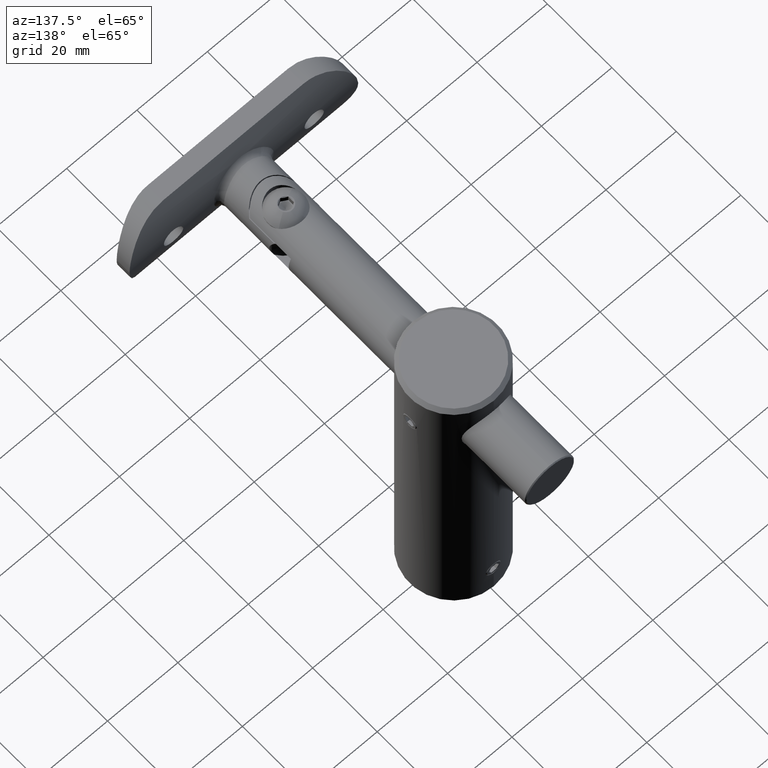
[diagram: clean part render]
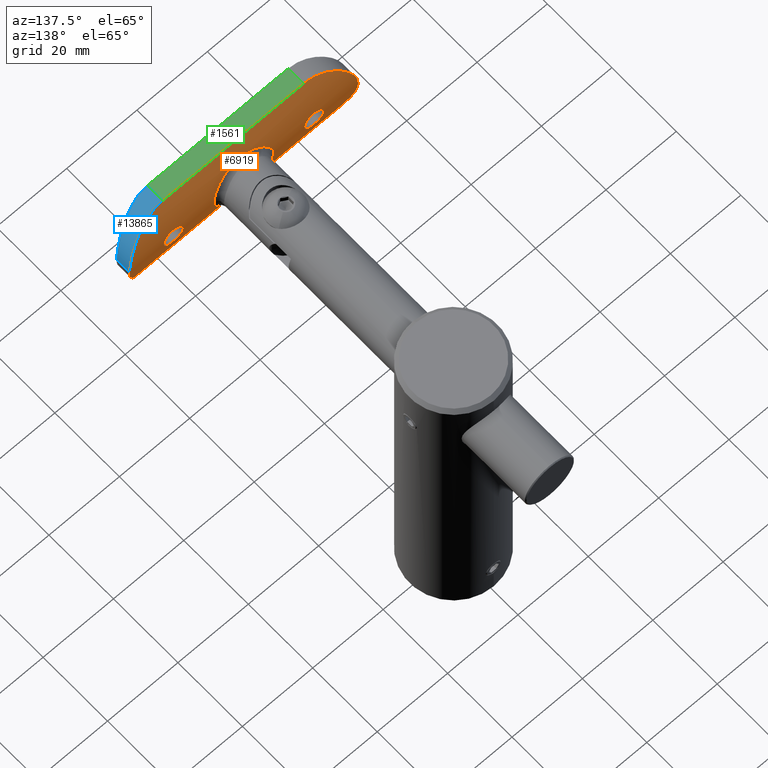
[diagram: same view with three faces highlighted in distinct colors, each labeled with its STEP entity id]
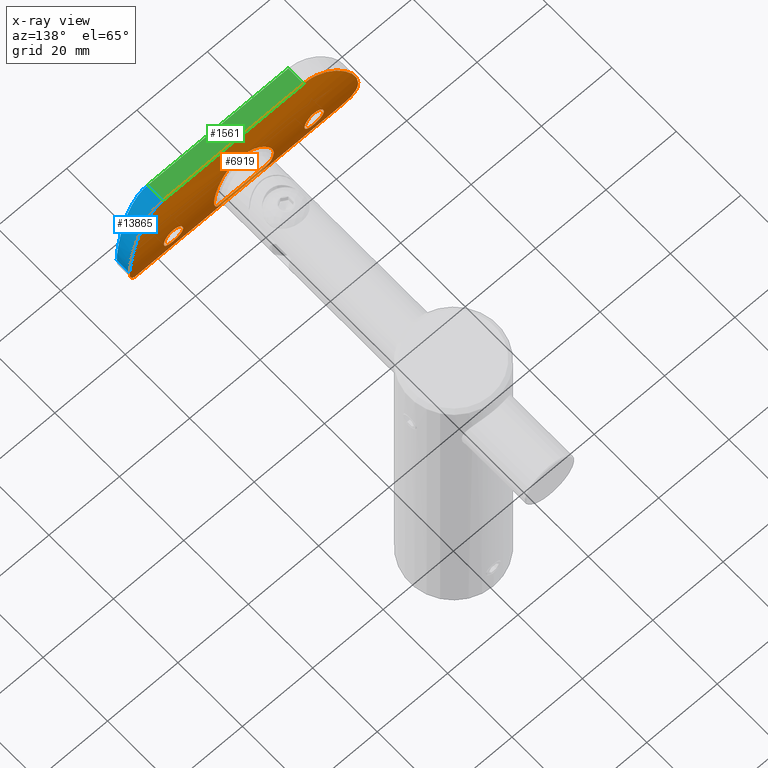
[diagram: x-ray of the same camera — body ghosted, the three highlighted faces saturated]
A machine part, auxiliary view with three faces highlighted in distinct colors.
The next image is the same camera in x-ray (body ghosted, the three faces saturated) — at least one of them is partly hidden behind the body in this view.
Their STEP definitions:

[orange] entity #6919 — the highlighted cylindrical surface (partial cylindrical patch) has radius 25.2 mm, axis along (1, -0, -0).
#29 = CARTESIAN_POINT ( 'NONE',  ( 7.219386327635718636, 1.055385166235058403, -3.746529570547258547 ) ) ;
#39 = CARTESIAN_POINT ( 'NONE',  ( 12.50000000000000355, 3.318729470161013495, -20.00000000000000355 ) ) ;
#101 = CARTESIAN_POINT ( 'NONE',  ( 7.364578021795687768, 1.099940530502117708, 3.382119123206853040 ) ) ;
#117 = VERTEX_POINT ( 'NONE', #466 ) ;
#249 = CARTESIAN_POINT ( 'NONE',  ( 5.529526221928346530, 0.6134291055515502800, -6.164569861872208456 ) ) ;
#466 = CARTESIAN_POINT ( 'NONE',  ( 0.000000000000000000, 0.000000000000000000, 17.25000000000000000 ) ) ;
#475 = CARTESIAN_POINT ( 'NONE',  ( 12.07039748615804342, 3.078414103210619146, 23.27518083691608552 ) ) ;
#559 = CYLINDRICAL_SURFACE ( 'NONE', #1268, 25.19999999999999929 ) ;
#715 = CARTESIAN_POINT ( 'NONE',  ( 1.677668902466896039, 0.05546439489903180059, 22.18632152173756467 ) ) ;
#855 = EDGE_LOOP ( 'NONE', ( #15934, #2331 ) ) ;
#926 = CARTESIAN_POINT ( 'NONE',  ( -5.426409316534606120, 0.5903371110060685600, -6.266707544016423270 ) ) ;
#974 = ORIENTED_EDGE ( 'NONE', *, *, #11627, .F. ) ;
#992 = CARTESIAN_POINT ( 'NONE',  ( -2.201255951346376083, 0.09498592681639472790, -8.178813999668568258 ) ) ;
#998 = CARTESIAN_POINT ( 'NONE',  ( 2.186845405397447983, 0.09486715601728983038, -18.32301179898312782 ) ) ;
#1027 = CARTESIAN_POINT ( 'NONE',  ( -2.731891327557903981, 0.1484927668286139535, 20.36248250880534272 ) ) ;
#1067 = CARTESIAN_POINT ( 'NONE',  ( 1.219095633492286668, 0.02895344662255283641, -17.52840215053666029 ) ) ;
#1098 = CARTESIAN_POINT ( 'NONE',  ( -0.7248454631982098606, 0.008252449000111697353, 17.32318349877056818 ) ) ;
#1136 = CARTESIAN_POINT ( 'NONE',  ( 2.608974361319663426, 0.1353235704774093939, -20.88759748460953958 ) ) ;
#1166 = CARTESIAN_POINT ( 'NONE',  ( -1.677983819124378329, 0.05547686773416762168, 22.18621664658374115 ) ) ;
#1228 = CARTESIAN_POINT ( 'NONE',  ( -7.315607594578458439, 1.082687997029814664, -30.14380031678956584 ) ) ;
#1234 = CARTESIAN_POINT ( 'NONE',  ( -2.608673552859927636, 0.1352907402618857835, 20.88869986416369073 ) ) ;
#1268 = AXIS2_PLACEMENT_3D ( 'NONE', #11400, #11618, #1749 ) ;
#1281 = ORIENTED_EDGE ( 'NONE', *, *, #12172, .T. ) ;
#1320 = CARTESIAN_POINT ( 'NONE',  ( 2.721702950764889550, 0.1425326134147779644, 8.015957193783950885 ) ) ;
#1329 = CARTESIAN_POINT ( 'NONE',  ( 0.000000000000000000, 0.000000000000000000, -22.75000000000000000 ) ) ;
#1361 = CARTESIAN_POINT ( 'NONE',  ( -12.17172894015757656, 3.134241449003878799, -22.87552147047213680 ) ) ;
#1380 = CARTESIAN_POINT ( 'NONE',  ( 12.41600094213972305, 3.270152093552303629, -21.66693629175976099 ) ) ;
#1401 = CARTESIAN_POINT ( 'NONE',  ( -0.06108275549893127376, 7.402993054683726371E-05, -8.499753613984275091 ) ) ;
#1427 = CARTESIAN_POINT ( 'NONE',  ( -11.68647699581961064, 2.872938612537728531, -24.45450101598523673 ) ) ;
#1458 = CARTESIAN_POINT ( 'NONE',  ( 2.212110397901187575, 0.09166198474247391759, 8.190629679048095468 ) ) ;
#1470 = CARTESIAN_POINT ( 'NONE',  ( -2.749863044303475501, 0.1504839716144722728, -19.81620417960690261 ) ) ;
#1475 = CARTESIAN_POINT ( 'NONE',  ( -4.069310134489409592, 0.3267805101645110399, 7.346586966710392907 ) ) ;
#1622 = CARTESIAN_POINT ( 'NONE',  ( -6.549007653830282827, 0.8654109688374730380, 4.917023675230043800 ) ) ;
#1661 = CARTESIAN_POINT ( 'NONE',  ( -12.50000000000000178, 3.318729470161014383, 20.84105733039345765 ) ) ;
#1675 = CARTESIAN_POINT ( 'NONE',  ( 5.337112230350437692, 0.5707867674719869777, -6.352280609391856459 ) ) ;
#1691 = CARTESIAN_POINT ( 'NONE',  ( -2.096404911681920336, 0.08166995862605212764, 8.224845379953734437 ) ) ;
#1726 = CARTESIAN_POINT ( 'NONE',  ( -10.83018612312571882, 2.440555194631701674, 26.29386951518686999 ) ) ;
#1741 = CARTESIAN_POINT ( 'NONE',  ( 2.858471660253331326, 0.1614077930145038364, -7.947203351163224738 ) ) ;
#1749 = DIRECTION ( 'NONE',  ( -1.000000000000000000, 0.000000000000000000, 0.000000000000000000 ) ) ;
#1760 = CARTESIAN_POINT ( 'NONE',  ( -8.025752413704363875, 1.312193245451310331, -0.4858620084487325075 ) ) ;
#1896 = CARTESIAN_POINT ( 'NONE',  ( 7.979500815149819459, 1.296497576001208296, 1.032576614637431778 ) ) ;
#1937 = EDGE_CURVE ( 'NONE', #19012, #13345, #17522, .T. ) ;
#2012 = CARTESIAN_POINT ( 'NONE',  ( 0.7123072138261845598, 0.009455089816862395288, 17.33780877909764229 ) ) ;
#2125 = CARTESIAN_POINT ( 'NONE',  ( 9.128318860952353120, 1.709465851586690732, 28.54893592778294575 ) ) ;
#2197 = B_SPLINE_CURVE_WITH_KNOTS ( 'NONE', 3,
 ( #1401, #2499, #20513, #10726, #992, #12491, #17441, #7907, #19005, #14123, #12824, #926, #12355, #13982, #4967, #21136, #6555, #16408, #13030, #3409, #14812, #4899, #1760, #17856, #13103, #21070, #11480, #9769, #16336, #3122, #12967, #1622, #3258, #11274, #19570, #17984, #19421, #1475, #9912, #19625, #1691, #8272, #3334, #16127, #6621, #14674 ),
 .UNSPECIFIED., .F., .F.,
 ( 4, 2, 2, 2, 2, 2, 2, 2, 2, 2, 2, 2, 2, 2, 2, 2, 2, 2, 2, 2, 2, 2, 4 ),
 ( 6.108329727381766109E-05, 0.001711083506257863934, 0.002536083610749886603, 0.003361083715241909055, 0.005011083924225954826, 0.005836084028717977712, 0.006661084133210000598, 0.008311084342194048971, 0.009961084551178094743, 0.01078608465567011850, 0.01161108476016214225, 0.01326108496914619149, 0.01491108517813023553, 0.01656108538711428130, 0.01738608549160630332, 0.01821108559609833227, 0.01903608570059035429, 0.01986108580508238325, 0.02151108601406643422, 0.02316108622305048520, 0.02481108643203453964, 0.02563608653652656513, 0.02646108664101859062 ),
 .UNSPECIFIED. ) ;
#2216 = VERTEX_POINT ( 'NONE', #18242 ) ;
#2331 = ORIENTED_EDGE ( 'NONE', *, *, #12564, .F. ) ;
#2499 = CARTESIAN_POINT ( 'NONE',  ( -0.6110681906168824451, 0.001407153920719840827, -8.495316660117891772 ) ) ;
#2680 = CARTESIAN_POINT ( 'NONE',  ( -2.749863044303475501, 0.1504839716144722728, 20.18379582039309739 ) ) ;
#2720 = EDGE_CURVE ( 'NONE', #2216, #20405, #19235, .T. ) ;
#2807 = CARTESIAN_POINT ( 'NONE',  ( -2.609961094115734959, 0.1354253680277159866, 19.11507552572169999 ) ) ;
#2946 = CARTESIAN_POINT ( 'NONE',  ( -9.128318860952344238, 1.709465851586691398, -28.54893592778294575 ) ) ;
#2999 = ORIENTED_EDGE ( 'NONE', *, *, #9517, .T. ) ;
#3076 = CARTESIAN_POINT ( 'NONE',  ( -4.468211620779531934, 0.3963447934949461127, -31.68121519372563100 ) ) ;
#3122 = CARTESIAN_POINT ( 'NONE',  ( -6.964696288678641878, 0.9812289249431125349, 4.227420665601886896 ) ) ;
#3188 = CARTESIAN_POINT ( 'NONE',  ( -1.217448732056683136, 0.02888063956006700975, -17.52767396449248238 ) ) ;
#3229 = CARTESIAN_POINT ( 'NONE',  ( 0.000000000000000000, 0.000000000000000000, 32.50000000000000000 ) ) ;
#3244 = CARTESIAN_POINT ( 'NONE',  ( 4.931500988828241283, 0.4863760364879862186, -6.710225937913270933 ) ) ;
#3258 = CARTESIAN_POINT ( 'NONE',  ( -6.396290159362874483, 0.8246844479477537515, 5.137882799507451637 ) ) ;
#3296 = CARTESIAN_POINT ( 'NONE',  ( -3.277855041561018368, 0.2108776143917484303, 32.06970119788351781 ) ) ;
#3312 = CARTESIAN_POINT ( 'NONE',  ( 1.029335845911686143, 0.01545738240591788999, -8.449071739571833106 ) ) ;
#3334 = CARTESIAN_POINT ( 'NONE',  ( -1.023846999475756192, 0.01934687596871893442, 8.435428898004911247 ) ) ;
#3352 = FACE_BOUND ( 'NONE', #855, .T. ) ;
#3391 = CARTESIAN_POINT ( 'NONE',  ( -0.06108275549893127376, 7.402993054683726371E-05, -8.499753613984275091 ) ) ;
#3409 = CARTESIAN_POINT ( 'NONE',  ( -7.778756138078517957, 1.230506860669539959, -2.097069732046016100 ) ) ;
#3452 = CARTESIAN_POINT ( 'NONE',  ( -12.49999999999999645, 3.318729470161013495, 20.00000000000000000 ) ) ;
#3527 = CARTESIAN_POINT ( 'NONE',  ( 6.403089845704128535, 0.8252358511368963478, -5.150547054720000517 ) ) ;
#3640 = CARTESIAN_POINT ( 'NONE',  ( 2.386475810722792801, 0.1130527907451534392, 18.62162094614700081 ) ) ;
#3654 = LINE ( 'NONE', #19810, #20555 ) ;
#3683 = CARTESIAN_POINT ( 'NONE',  ( 12.41604513394916331, 3.270190002513736260, 21.66440971848879826 ) ) ;
#3691 = VERTEX_POINT ( 'NONE', #17725 ) ;
#3932 = CARTESIAN_POINT ( 'NONE',  ( 2.071661256399241147, 0.08497705952024417475, -21.81737590011710637 ) ) ;
#4053 = VERTEX_POINT ( 'NONE', #8789 ) ;
#4283 = CARTESIAN_POINT ( 'NONE',  ( 2.732461809628500049, 0.1485546420409056823, -20.35905496703956175 ) ) ;
#4313 = CARTESIAN_POINT ( 'NONE',  ( -2.661730875569997323, 0.1409410865998053930, 20.71401158310862911 ) ) ;
#4329 = CARTESIAN_POINT ( 'NONE',  ( 7.643915563752456954, 1.185045859685578851, -29.89864509263436787 ) ) ;
#4389 = CARTESIAN_POINT ( 'NONE',  ( -2.070049739579363557, 0.08484369530548850624, 21.81920921176698158 ) ) ;
#4454 = CARTESIAN_POINT ( 'NONE',  ( -0.3580001740282881539, 0.001917836237160809674, 22.73259430812108306 ) ) ;
#4518 = CARTESIAN_POINT ( 'NONE',  ( -12.49999999999999822, 3.318729470161014383, -20.84092147420122032 ) ) ;
#4550 = EDGE_LOOP ( 'NONE', ( #17986, #1281, #15323, #2999, #11323, #12786 ) ) ;
#4585 = CARTESIAN_POINT ( 'NONE',  ( -2.387772925441571825, 0.1131797228511405573, 18.62402471359489908 ) ) ;
#4597 = CARTESIAN_POINT ( 'NONE',  ( 3.277855041561019256, 0.2108776143917484025, -32.06970119788353202 ) ) ;
#4599 = DIRECTION ( 'NONE',  ( 0.000000000000000000, 0.000000000000000000, -1.000000000000000000 ) ) ;
#4719 = CARTESIAN_POINT ( 'NONE',  ( 0.000000000000000000, 0.000000000000000000, -32.50000000000000000 ) ) ;
#4801 = CARTESIAN_POINT ( 'NONE',  ( -4.070717388981838880, 0.3277296730789911461, 31.82587335543209761 ) ) ;
#4824 = CARTESIAN_POINT ( 'NONE',  ( -2.470413666786928530, 0.1212862312369624579, -18.77851669315223404 ) ) ;
#4867 = CARTESIAN_POINT ( 'NONE',  ( -11.68341459577139929, 2.871341540761538358, 24.46233648995672638 ) ) ;
#4899 = CARTESIAN_POINT ( 'NONE',  ( -7.980480439930787817, 1.296824004734356661, -1.025345728784334387 ) ) ;
#4967 = CARTESIAN_POINT ( 'NONE',  ( -6.475385558901228578, 0.8444232337257844279, -5.048033015876951524 ) ) ;
#5018 = CARTESIAN_POINT ( 'NONE',  ( 6.977323454022847926, 0.9833601772912337058, -4.231161586339579728 ) ) ;
#5060 = VERTEX_POINT ( 'NONE', #18862 ) ;
#5161 = CARTESIAN_POINT ( 'NONE',  ( 2.084272546754580180, 0.08499509583040139316, -8.213134328736778400 ) ) ;
#5210 = CARTESIAN_POINT ( 'NONE',  ( 0.1818445906004800550, -2.382280164152719704E-19, 17.25000000000000355 ) ) ;
#5323 = CARTESIAN_POINT ( 'NONE',  ( 3.291592242805514879, 0.2126942720887864124, 32.06594161125493514 ) ) ;
#5395 = CARTESIAN_POINT ( 'NONE',  ( 4.468211620779538151, 0.3963447934949464457, 31.68121519372564521 ) ) ;
#5425 = CARTESIAN_POINT ( 'NONE',  ( 0.3606231533980620574, 0.001966636658811664849, -22.73214102944040249 ) ) ;
#5427 = CARTESIAN_POINT ( 'NONE',  ( 0.8870457649144875001, 0.01506562019405573161, 17.39075877949505156 ) ) ;
#5501 = CARTESIAN_POINT ( 'NONE',  ( 1.676804932486638755, 0.05540344988688259559, -22.18703308796564855 ) ) ;
#5502 = CARTESIAN_POINT ( 'NONE',  ( 1.377952979709324399, 0.03725658765956019886, 17.61336343462641096 ) ) ;
#5643 = CARTESIAN_POINT ( 'NONE',  ( 1.220040459320808290, 0.02899940046473993907, -22.47113156538763690 ) ) ;
#5644 = CARTESIAN_POINT ( 'NONE',  ( 1.219095633492286668, 0.02895344662255283641, 22.47159784946334327 ) ) ;
#5819 = EDGE_CURVE ( 'NONE', #117, #3691, #13046, .T. ) ;
#5920 = CARTESIAN_POINT ( 'NONE',  ( 1.379931598055809783, 0.03736833065384769642, -17.61455171353381743 ) ) ;
#5952 = CARTESIAN_POINT ( 'NONE',  ( -0.1795031878923732671, -1.317162702760038330E-15, 22.75000000000000000 ) ) ;
#5969 = CARTESIAN_POINT ( 'NONE',  ( 4.070717388981838880, 0.3277296730789912571, -31.82587335543210472 ) ) ;
#6065 = CARTESIAN_POINT ( 'NONE',  ( 2.750065284371435048, 0.1505061740554802518, -19.82148950650028851 ) ) ;
#6151 = CARTESIAN_POINT ( 'NONE',  ( -12.49999999999999645, 3.318729470161013495, 20.00000000000000000 ) ) ;
#6159 = CARTESIAN_POINT ( 'NONE',  ( -9.908890582928830071, 2.028239840774360481, -27.63058222437334166 ) ) ;
#6175 = CARTESIAN_POINT ( 'NONE',  ( 8.266035766619461711, 1.392015620549697186, -29.38537545976075194 ) ) ;
#6192 = CARTESIAN_POINT ( 'NONE',  ( -2.732406010615071601, 0.1485492483776507389, -20.35858776644249346 ) ) ;
#6223 = CARTESIAN_POINT ( 'NONE',  ( -10.83002449294435898, 2.440458914311941729, -26.29431497601598622 ) ) ;
#6231 = CARTESIAN_POINT ( 'NONE',  ( -1.681001452974610233, 0.05567932825155114118, 17.81610398777750959 ) ) ;
#6244 = CARTESIAN_POINT ( 'NONE',  ( 10.83018612312571882, 2.440555194631701230, -26.29386951518686644 ) ) ;
#6255 = CARTESIAN_POINT ( 'NONE',  ( 5.034052585110987188, 0.5040469696071594452, 6.641681414604299505 ) ) ;
#6296 = CARTESIAN_POINT ( 'NONE',  ( -12.07039748615804520, 3.078414103210619146, -23.27518083691609263 ) ) ;
#6333 = CARTESIAN_POINT ( 'NONE',  ( -0.3580001740282881539, 0.001917836237160809674, -17.26740569187890983 ) ) ;
#6446 = CARTESIAN_POINT ( 'NONE',  ( -4.460191993434859725, 0.3948698794312859861, 31.68435314470299957 ) ) ;
#6474 = CARTESIAN_POINT ( 'NONE',  ( -2.472126326106448335, 0.1214555880474237487, -21.21802285107709807 ) ) ;
#6490 = VERTEX_POINT ( 'NONE', #8603 ) ;
#6537 = CARTESIAN_POINT ( 'NONE',  ( 7.257040857804980760, 1.067233475373370544, 3.633718849123316552 ) ) ;
#6555 = CARTESIAN_POINT ( 'NONE',  ( -7.269647212595326202, 1.070531933630990640, -3.635648357687877752 ) ) ;
#6588 = CARTESIAN_POINT ( 'NONE',  ( -7.316861939614358157, 1.083062932609342166, 30.14291416132807910 ) ) ;
#6603 = CARTESIAN_POINT ( 'NONE',  ( 3.599532272273171074, 0.2534329579878119021, -7.617564970011440728 ) ) ;
#6621 = CARTESIAN_POINT ( 'NONE',  ( -0.2105459697796843166, -0.0005793382571954952499, 8.501928177923188557 ) ) ;
#6660 = CARTESIAN_POINT ( 'NONE',  ( -12.16969663537520674, 3.133117325917486706, 22.88442763853375794 ) ) ;
#6672 = EDGE_CURVE ( 'NONE', #13345, #16647, #14045, .T. ) ;
#6677 = CARTESIAN_POINT ( 'NONE',  ( 8.018510805691830612, 1.309761405890365715, -0.6056675762212204717 ) ) ;
#6861 = CARTESIAN_POINT ( 'NONE',  ( 0.3606231533980620574, 0.001966636658811664849, 17.26785897055959751 ) ) ;
#6919 = ADVANCED_FACE ( 'NONE', ( #9266, #11044, #16390, #3352 ), #559, .T. ) ;
#6935 = CARTESIAN_POINT ( 'NONE',  ( 2.185445985078766196, 0.09474132932688443531, 18.32100581967393182 ) ) ;
#7078 = CARTESIAN_POINT ( 'NONE',  ( 0.7123072138261845598, 0.009455089816862395288, -22.66219122090236127 ) ) ;
#7117 = CARTESIAN_POINT ( 'NONE',  ( 10.15187181039420672, 2.133985303426429780, 27.30437927746718074 ) ) ;
#7189 = CARTESIAN_POINT ( 'NONE',  ( 12.50000000000000355, 3.318729470161013495, 20.84092147420121677 ) ) ;
#7222 = CARTESIAN_POINT ( 'NONE',  ( 0.3619265619250442434, 0.001981854215824128441, 22.73200348333876519 ) ) ;
#7262 = CARTESIAN_POINT ( 'NONE',  ( 9.397641427769128697, 1.816225346274615182, 28.25204418689426689 ) ) ;
#7357 = B_SPLINE_CURVE_WITH_KNOTS ( 'NONE', 3,
 ( #11470, #7189, #3683, #10416, #475, #18404, #8843, #16921, #8768, #7117, #15102, #7262, #2125, #20130, #13662, #15168, #18692, #8628, #11909, #5395, #20271, #5323, #20058, #16849, #20195, #16770 ),
 .UNSPECIFIED., .F., .F.,
 ( 4, 2, 2, 2, 2, 2, 2, 2, 2, 2, 2, 2, 4 ),
 ( 0.000000000000000000, 0.002482949619020690529, 0.003724424428531040131, 0.004965899238041389732, 0.007448848857062097609, 0.008690323666572448078, 0.009931798476082796812, 0.01117327328559314728, 0.01241474809510349428, 0.01489769771412418828, 0.01613917252363453528, 0.01738064733314488228, 0.01986359695216557281 ),
 .UNSPECIFIED. ) ;
#7436 = CARTESIAN_POINT ( 'NONE',  ( 0.1795455977072645815, -1.311983449217973235E-15, -17.25000000000000355 ) ) ;
#7437 = CARTESIAN_POINT ( 'NONE',  ( 1.379931598055809783, 0.03736833065384769642, 22.38544828646618257 ) ) ;
#7577 = CARTESIAN_POINT ( 'NONE',  ( 2.749934349876255180, 0.1504917997237276150, -20.18051630387616768 ) ) ;
#7617 = CARTESIAN_POINT ( 'NONE',  ( 10.15326211524584643, 2.134602035805861941, -27.30241053714794930 ) ) ;
#7637 = CARTESIAN_POINT ( 'NONE',  ( 2.471811025445441512, 0.1214254394478188476, -21.21849364676016947 ) ) ;
#7678 = CARTESIAN_POINT ( 'NONE',  ( 6.305381315458570057, 0.7915044484486738474, -30.82371801999915917 ) ) ;
#7701 = CARTESIAN_POINT ( 'NONE',  ( 1.677668902466896039, 0.05546439489903180059, -17.81367847826244244 ) ) ;
#7807 = CARTESIAN_POINT ( 'NONE',  ( -2.662740999674293896, 0.1410487502677224281, 19.28976189785317175 ) ) ;
#7820 = CARTESIAN_POINT ( 'NONE',  ( 2.877492456091673922, 0.1615283928029649652, -32.17128298990891722 ) ) ;
#7839 = CARTESIAN_POINT ( 'NONE',  ( -2.186191567257209645, 0.09480897740505452032, -18.32210674297805042 ) ) ;
#7864 = CARTESIAN_POINT ( 'NONE',  ( -9.397641427769128697, 1.816225346274616292, -28.25204418689426333 ) ) ;
#7883 = CARTESIAN_POINT ( 'NONE',  ( 11.82318603278413960, 2.945306615177193610, -24.07833795785315445 ) ) ;
#7891 = CARTESIAN_POINT ( 'NONE',  ( 6.157552135518212566, 0.7610150547235419172, 5.476895163592731208 ) ) ;
#7907 = CARTESIAN_POINT ( 'NONE',  ( -3.706125848579806537, 0.2691211238552234652, -7.559892060029604899 ) ) ;
#7936 = CARTESIAN_POINT ( 'NONE',  ( -7.642973678624868761, 1.184744735341880739, -29.89937630247455047 ) ) ;
#7976 = CARTESIAN_POINT ( 'NONE',  ( -2.070049739579363113, 0.08484369530548910299, -18.18079078823301842 ) ) ;
#8044 = CARTESIAN_POINT ( 'NONE',  ( 3.698755685074010646, 0.2718078074227756047, 7.547990148752564465 ) ) ;
#8097 = CARTESIAN_POINT ( 'NONE',  ( -7.643915563752456066, 1.185045859685579073, 29.89864509263435366 ) ) ;
#8165 = CARTESIAN_POINT ( 'NONE',  ( -0.8406273536774243604, 0.000000000000000000, 32.49999999999999289 ) ) ;
#8197 = VERTEX_POINT ( 'NONE', #39 ) ;
#8272 = CARTESIAN_POINT ( 'NONE',  ( -1.296580820323811167, 0.03196009655009600381, 8.393195513344283043 ) ) ;
#8313 = CARTESIAN_POINT ( 'NONE',  ( -1.664684350995173645, 0.04192139592814474874, 32.41608617209117682 ) ) ;
#8432 = CARTESIAN_POINT ( 'NONE',  ( 2.071661256399241147, 0.08497705952024417475, 18.18262409988289008 ) ) ;
#8445 = DIRECTION ( 'NONE',  ( 0.000000000000000000, 0.000000000000000000, -1.000000000000000000 ) ) ;
#8603 = CARTESIAN_POINT ( 'NONE',  ( 0.000000000000000000, 0.000000000000000000, 32.50000000000000000 ) ) ;
#8628 = CARTESIAN_POINT ( 'NONE',  ( 6.305223603466182603, 0.7914857843385423308, 30.82374023567219368 ) ) ;
#8662 = CARTESIAN_POINT ( 'NONE',  ( 0.000000000000000000, 0.000000000000000000, 17.25000000000000000 ) ) ;
#8730 = CARTESIAN_POINT ( 'NONE',  ( 1.818193974664967349, 0.06535601341085055249, 17.92905668979468814 ) ) ;
#8768 = CARTESIAN_POINT ( 'NONE',  ( 10.83002449294436254, 2.440458914311941729, 26.29431497601598267 ) ) ;
#8789 = CARTESIAN_POINT ( 'NONE',  ( 0.000000000000000000, 0.000000000000000000, -22.75000000000000000 ) ) ;
#8843 = CARTESIAN_POINT ( 'NONE',  ( 11.68647699581961064, 2.872938612537728975, 24.45450101598523318 ) ) ;
#9095 = CARTESIAN_POINT ( 'NONE',  ( 2.186845405397447983, 0.09486715601728983038, 21.67698820101687929 ) ) ;
#9266 = FACE_BOUND ( 'NONE', #12699, .T. ) ;
#9297 = CARTESIAN_POINT ( 'NONE',  ( 0.3619265619250442434, 0.001981854215824128441, -17.26799651666123836 ) ) ;
#9367 = CARTESIAN_POINT ( 'NONE',  ( 0.8860473344149224495, 0.01503029826974693756, -17.39041953290418974 ) ) ;
#9398 = CARTESIAN_POINT ( 'NONE',  ( -1.380705439593752137, 0.03740314638222120430, 17.61487523047949111 ) ) ;
#9470 = CARTESIAN_POINT ( 'NONE',  ( 9.129107160068516080, 1.709771713892833001, -28.54809784016517327 ) ) ;
#9491 = CARTESIAN_POINT ( 'NONE',  ( -0.1795031878923732671, -1.317162702760038330E-15, -17.25000000000000355 ) ) ;
#9517 = EDGE_CURVE ( 'NONE', #12153, #6490, #7357, .T. ) ;
#9561 = CARTESIAN_POINT ( 'NONE',  ( -2.608673552859927636, 0.1352907402618860333, -19.11130013583631282 ) ) ;
#9594 = CARTESIAN_POINT ( 'NONE',  ( -0.8408319059978933696, 2.428161115462323427E-17, -32.50000000000000000 ) ) ;
#9631 = CARTESIAN_POINT ( 'NONE',  ( -1.220874907014684041, 0.02904747797317014379, -22.47063278192352698 ) ) ;
#9741 = CARTESIAN_POINT ( 'NONE',  ( -11.82318603278414315, 2.945306615177194054, 24.07833795785315445 ) ) ;
#9765 = CARTESIAN_POINT ( 'NONE',  ( -1.819241778286837530, 0.06543225118884783698, -22.07002044224181958 ) ) ;
#9769 = CARTESIAN_POINT ( 'NONE',  ( -7.317168829571954802, 1.085487654854809803, 3.495793623221178148 ) ) ;
#9807 = CARTESIAN_POINT ( 'NONE',  ( -11.21245238722107018, 2.629098992545241487, 25.58474759764793660 ) ) ;
#9826 = CARTESIAN_POINT ( 'NONE',  ( 7.813422821510338956, 1.241842921743142147, -1.946974063800769761 ) ) ;
#9912 = CARTESIAN_POINT ( 'NONE',  ( -3.593177948507834341, 0.2525513425753247443, 7.620775319185632668 ) ) ;
#10049 = CARTESIAN_POINT ( 'NONE',  ( 7.021641523310250932, 0.9976940672564051926, 4.120334444547545161 ) ) ;
#10236 = CARTESIAN_POINT ( 'NONE',  ( 2.661862787343812098, 0.1409550103587203784, 20.71368127239569290 ) ) ;
#10379 = CARTESIAN_POINT ( 'NONE',  ( 0.8870457649144875001, 0.01506562019405573161, -22.60924122050495200 ) ) ;
#10380 = CARTESIAN_POINT ( 'NONE',  ( 2.661818859993606790, 0.1409500894293511108, 19.28586530190980852 ) ) ;
#10416 = CARTESIAN_POINT ( 'NONE',  ( 12.17172894015757301, 3.134241449003879243, 22.87552147047213325 ) ) ;
#10596 = CARTESIAN_POINT ( 'NONE',  ( 0.8860473344149224495, 0.01503029826974693756, 22.60958046709580316 ) ) ;
#10677 = EDGE_CURVE ( 'NONE', #6490, #19012, #15982, .T. ) ;
#10679 = ORIENTED_EDGE ( 'NONE', *, *, #2720, .T. ) ;
#10726 = CARTESIAN_POINT ( 'NONE',  ( -1.940354578360550475, 0.07342339228314843924, -8.252580130412868087 ) ) ;
#10729 = CARTESIAN_POINT ( 'NONE',  ( 2.471992188797772716, 0.1214422965093789331, 21.21829803538180670 ) ) ;
#10833 = CARTESIAN_POINT ( 'NONE',  ( -0.8864897003658910313, 0.01505276392571752719, 22.60935115539859197 ) ) ;
#10876 = CARTESIAN_POINT ( 'NONE',  ( 1.816470635807415190, 0.06522320398721241641, -17.92734796741710923 ) ) ;
#10906 = CARTESIAN_POINT ( 'NONE',  ( -1.819241778286838196, 0.06543225118884780922, 17.92997955775818397 ) ) ;
#10920 = CARTESIAN_POINT ( 'NONE',  ( 11.68341459577140107, 2.871341540761539246, -24.46233648995674059 ) ) ;
#10945 = CARTESIAN_POINT ( 'NONE',  ( 2.661818859993606790, 0.1409500894293511108, -20.71413469809019148 ) ) ;
#11044 = FACE_OUTER_BOUND ( 'NONE', #4550, .T. ) ;
#11052 = CARTESIAN_POINT ( 'NONE',  ( 0.8406273536774238053, -0.000000000000000000, -32.49999999999999289 ) ) ;
#11113 = CARTESIAN_POINT ( 'NONE',  ( -1.217448732056683580, 0.02888063956006701322, 22.47232603550751762 ) ) ;
#11126 = CARTESIAN_POINT ( 'NONE',  ( 7.316861939614359933, 1.083062932609342388, -30.14291416132809687 ) ) ;
#11182 = CARTESIAN_POINT ( 'NONE',  ( 8.562866471435933491, 1.497495063479012956, -29.11525600394245572 ) ) ;
#11274 = CARTESIAN_POINT ( 'NONE',  ( -6.068934015391644898, 0.7411248013792612888, 5.565846480655862294 ) ) ;
#11296 = CARTESIAN_POINT ( 'NONE',  ( -10.15187181039420139, 2.133985303426428448, -27.30437927746718074 ) ) ;
#11323 = ORIENTED_EDGE ( 'NONE', *, *, #10677, .T. ) ;
#11340 = CARTESIAN_POINT ( 'NONE',  ( -2.188487952104988921, 0.09500982583482231458, -21.67489940466904486 ) ) ;
#11396 = CARTESIAN_POINT ( 'NONE',  ( 6.893386344518961373, 0.9607351080256109066, 4.356614900635508825 ) ) ;
#11400 = CARTESIAN_POINT ( 'NONE',  ( 0.000000000000000000, 25.19999999999999929, 32.50000000000000000 ) ) ;
#11446 = CARTESIAN_POINT ( 'NONE',  ( -6.305381315458568281, 0.7915044484486738474, 30.82371801999915917 ) ) ;
#11462 = CARTESIAN_POINT ( 'NONE',  ( 4.719140503290183197, 0.4448193468405350903, -6.879513116131951378 ) ) ;
#11470 = CARTESIAN_POINT ( 'NONE',  ( 12.50000000000000355, 3.318729470161013495, 20.00000000000000000 ) ) ;
#11480 = CARTESIAN_POINT ( 'NONE',  ( -7.613268930484754726, 1.176661399992941170, 2.735539625944348519 ) ) ;
#11521 = CARTESIAN_POINT ( 'NONE',  ( -8.266035766619465264, 1.392015620549698296, 29.38537545976074483 ) ) ;
#11538 = CARTESIAN_POINT ( 'NONE',  ( 6.077169719930138214, 0.7408805853093767269, -5.576197931323938484 ) ) ;
#11590 = CARTESIAN_POINT ( 'NONE',  ( -9.398516132625637454, 1.816575251650669465, 28.25106046154296280 ) ) ;
#11609 = CARTESIAN_POINT ( 'NONE',  ( 7.966027505263570951, 1.291970535364157957, -1.144846414395188861 ) ) ;
#11618 = DIRECTION ( 'NONE',  ( 0.000000000000000000, 0.000000000000000000, -1.000000000000000000 ) ) ;
#11627 = EDGE_CURVE ( 'NONE', #5060, #4053, #19559, .T. ) ;
#11903 = CARTESIAN_POINT ( 'NONE',  ( -0.06108275549893127376, 7.402993054683726371E-05, -8.499753613984275091 ) ) ;
#11909 = CARTESIAN_POINT ( 'NONE',  ( 5.594010815491769151, 0.6168360506386498798, 31.20802645236641837 ) ) ;
#12010 = CARTESIAN_POINT ( 'NONE',  ( 2.732461809628500049, 0.1485546420409056823, 19.64094503296044536 ) ) ;
#12153 = VERTEX_POINT ( 'NONE', #16033 ) ;
#12156 = CARTESIAN_POINT ( 'NONE',  ( 2.073153042044685535, 0.08509194481504149532, 21.81589880862932773 ) ) ;
#12172 = EDGE_CURVE ( 'NONE', #16647, #8197, #13093, .T. ) ;
#12290 = CARTESIAN_POINT ( 'NONE',  ( 2.609876908287981578, 0.1354165326377078371, 20.88517682305715084 ) ) ;
#12355 = CARTESIAN_POINT ( 'NONE',  ( -5.615458157688395069, 0.6329364436400787275, -6.076716287299063879 ) ) ;
#12361 = CARTESIAN_POINT ( 'NONE',  ( 0.1795455977072645815, -1.311983449217973235E-15, 22.75000000000000000 ) ) ;
#12465 = CARTESIAN_POINT ( 'NONE',  ( -2.186191567257209201, 0.09480897740505701832, 21.67789325702194958 ) ) ;
#12491 = CARTESIAN_POINT ( 'NONE',  ( -2.717468170008853434, 0.1456066502684315311, -8.002663445529751840 ) ) ;
#12564 = EDGE_CURVE ( 'NONE', #3691, #117, #18189, .T. ) ;
#12589 = CARTESIAN_POINT ( 'NONE',  ( -2.470413666786928530, 0.1212862312369622497, 21.22148330684776951 ) ) ;
#12605 = CARTESIAN_POINT ( 'NONE',  ( 12.50000000000000355, 3.318729470161013495, -20.00000000000000355 ) ) ;
#12652 = CARTESIAN_POINT ( 'NONE',  ( -12.49999999999999645, 3.318729470161013495, -20.00000000000000355 ) ) ;
#12670 = CARTESIAN_POINT ( 'NONE',  ( 1.664684350995175421, 0.04192139592814493609, -32.41608617209116971 ) ) ;
#12672 = CARTESIAN_POINT ( 'NONE',  ( -12.49999999999999645, 3.318729470161013495, 32.50000000000002132 ) ) ;
#12699 = EDGE_LOOP ( 'NONE', ( #17177, #10679 ) ) ;
#12722 = CARTESIAN_POINT ( 'NONE',  ( -1.816389252517511821, 0.06522504145087958116, 22.07252458703131381 ) ) ;
#12733 = CARTESIAN_POINT ( 'NONE',  ( 9.910013130227612876, 2.028718244006083804, -27.62913782769574667 ) ) ;
#12739 = CARTESIAN_POINT ( 'NONE',  ( 4.164404684986927840, 0.3453567068928883321, 7.270613454407812704 ) ) ;
#12786 = ORIENTED_EDGE ( 'NONE', *, *, #1937, .T. ) ;
#12824 = CARTESIAN_POINT ( 'NONE',  ( -5.028197777310791317, 0.5058984230495738865, -6.629112423204833959 ) ) ;
#12849 = CARTESIAN_POINT ( 'NONE',  ( -6.305223603466179938, 0.7914857843385423308, -30.82374023567219368 ) ) ;
#12900 = CARTESIAN_POINT ( 'NONE',  ( -2.385862764267737024, 0.1129972152947476410, -18.62071822284677225 ) ) ;
#12967 = CARTESIAN_POINT ( 'NONE',  ( -6.833211539546232061, 0.9436823771349134304, 4.461792971427138710 ) ) ;
#13023 = CARTESIAN_POINT ( 'NONE',  ( 3.367778438409112056E-16, 1.187979961890814428E-17, -17.25000000000000000 ) ) ;
#13030 = CARTESIAN_POINT ( 'NONE',  ( -7.635646868906145635, 1.184535288579818602, -2.621845462551171124 ) ) ;
#13046 = B_SPLINE_CURVE_WITH_KNOTS ( 'NONE', 3,
 ( #8662, #5210, #6861, #2012, #5427, #13414, #5502, #14987, #8730, #8432, #6935, #3640, #20159, #19870, #10380, #12010, #13342, #15059, #18295, #10236, #12290, #10729, #18873, #9095, #12156, #13701, #715, #7437, #5644, #10596, #15506, #7222, #12361, #15421 ),
 .UNSPECIFIED., .F., .F.,
 ( 4, 2, 2, 2, 2, 2, 2, 2, 2, 2, 2, 2, 2, 2, 2, 2, 4 ),
 ( 0.000000000000000000, 0.0005377598190094447488, 0.001075519638018889498, 0.001613279457028334030, 0.002151039276037778995, 0.002688799095047224395, 0.003226558914056668927, 0.003764318733066114326, 0.004302078552075559725, 0.004839838371085004691, 0.005377598190094449657, 0.005915358009103894622, 0.006453117828113337853, 0.006990877647122782819, 0.007528637466132227785, 0.008066397285141673618, 0.008604157104151117716 ),
 .UNSPECIFIED. ) ;
#13093 = B_SPLINE_CURVE_WITH_KNOTS ( 'NONE', 3,
 ( #19125, #11052, #12670, #7820, #4597, #5969, #19260, #15966, #7678, #11126, #4329, #6175, #11182, #9470, #20906, #12733, #7617, #6244, #15821, #10920, #7883, #19331, #15753, #1380, #19061, #12605 ),
 .UNSPECIFIED., .F., .F.,
 ( 4, 2, 2, 2, 2, 2, 2, 2, 2, 2, 2, 2, 4 ),
 ( 0.000000000000000000, 0.002483427128890330991, 0.003725140693335499738, 0.004966854257780666318, 0.007450281386671002946, 0.008691994951116169960, 0.009933708515561337840, 0.01117542208000650572, 0.01241713564445167187, 0.01490056277334199895, 0.01614227633778715643, 0.01738398990223231563, 0.01986741703112264446 ),
 .UNSPECIFIED. ) ;
#13103 = CARTESIAN_POINT ( 'NONE',  ( -7.965094847827829838, 1.291660766279462580, 1.151005647482816308 ) ) ;
#13158 = CARTESIAN_POINT ( 'NONE',  ( 1.822559215498214202, 0.06459752279117743357, -8.282670115813656864 ) ) ;
#13221 = CARTESIAN_POINT ( 'NONE',  ( 0.4888790547683526388, -0.001259036794736645036, -8.504190377259480016 ) ) ;
#13299 = CARTESIAN_POINT ( 'NONE',  ( 7.599619134033793522, 1.173098394851523896, -2.736831026865279348 ) ) ;
#13342 = CARTESIAN_POINT ( 'NONE',  ( 2.749934349876255180, 0.1504917997237276150, 19.81948369612383232 ) ) ;
#13345 = VERTEX_POINT ( 'NONE', #16793 ) ;
#13414 = CARTESIAN_POINT ( 'NONE',  ( 1.220040459320808290, 0.02899940046473993907, 17.52886843461236310 ) ) ;
#13618 = CARTESIAN_POINT ( 'NONE',  ( 0.1818445906004800550, -2.382280164152719704E-19, -22.75000000000000000 ) ) ;
#13662 = CARTESIAN_POINT ( 'NONE',  ( 8.265288067340183176, 1.391754679466066458, 29.38603808824741037 ) ) ;
#13701 = CARTESIAN_POINT ( 'NONE',  ( 1.816470635807415190, 0.06522320398721241641, 22.07265203258289077 ) ) ;
#13982 = CARTESIAN_POINT ( 'NONE',  ( -6.153664817988904190, 0.7601076573616447618, -5.481094006673682628 ) ) ;
#13985 = CARTESIAN_POINT ( 'NONE',  ( 0.7146027208720071577, 0.009516633005673829498, -17.33838830395485431 ) ) ;
#14045 = B_SPLINE_CURVE_WITH_KNOTS ( 'NONE', 3,
 ( #12652, #4518, #20826, #1361, #6296, #15943, #1427, #17737, #6223, #11296, #6159, #7864, #2946, #17609, #20892, #7936, #1228, #12849, #19446, #3076, #21024, #14491, #19379, #14351, #9594, #4719 ),
 .UNSPECIFIED., .F., .F.,
 ( 4, 2, 2, 2, 2, 2, 2, 2, 2, 2, 2, 2, 4 ),
 ( 0.000000000000000000, 0.002482949619020710912, 0.003724424428531060947, 0.004965899238041410549, 0.007448848857062111486, 0.008690323666572458486, 0.009931798476082803750, 0.01117327328559315248, 0.01241474809510349601, 0.01489769771412418828, 0.01613917252363453528, 0.01738064733314488228, 0.01986359695216557281 ),
 .UNSPECIFIED. ) ;
#14052 = CARTESIAN_POINT ( 'NONE',  ( 2.386475810722792801, 0.1130527907451534392, -21.37837905385301340 ) ) ;
#14085 = CARTESIAN_POINT ( 'NONE',  ( -2.750135411493285886, 0.1505138727913203633, 19.82032561543001492 ) ) ;
#14123 = CARTESIAN_POINT ( 'NONE',  ( -4.817859783684663277, 0.4638549703973136595, -6.802303946434011372 ) ) ;
#14287 = CARTESIAN_POINT ( 'NONE',  ( -2.732406010615071601, 0.1485492483776507389, 19.64141223355751009 ) ) ;
#14351 = CARTESIAN_POINT ( 'NONE',  ( -1.667268011024898078, 0.04195479554921971443, -32.41603179174911276 ) ) ;
#14356 = CARTESIAN_POINT ( 'NONE',  ( -0.7129347024110690434, 0.009461439531602326702, 22.66213446081863125 ) ) ;
#14357 = EDGE_CURVE ( 'NONE', #12153, #8197, #3654, .T. ) ;
#14382 = CARTESIAN_POINT ( 'NONE',  ( 4.388213306847314144, 0.3840468780490708389, 7.121130143105355970 ) ) ;
#14467 = CARTESIAN_POINT ( 'NONE',  ( -1.380705439593752137, 0.03740314638222121124, -22.38512476952051955 ) ) ;
#14491 = CARTESIAN_POINT ( 'NONE',  ( -3.291592242805508217, 0.2126942720887846638, -32.06594161125493514 ) ) ;
#14528 = CARTESIAN_POINT ( 'NONE',  ( -0.7248454631982098606, 0.008252449000111697353, -22.67681650122943537 ) ) ;
#14596 = CARTESIAN_POINT ( 'NONE',  ( -0.8864897003658910313, 0.01505276392571752719, -17.39064884460141869 ) ) ;
#14640 = CARTESIAN_POINT ( 'NONE',  ( -2.877492456091671258, 0.1615283928029647431, 32.17128298990891722 ) ) ;
#14674 = CARTESIAN_POINT ( 'NONE',  ( 0.06061480129754959895, 7.289998910099507211E-05, 8.499757374697548329 ) ) ;
#14777 = CARTESIAN_POINT ( 'NONE',  ( -12.06660317602190347, 3.076343127531651067, 23.28902056191594028 ) ) ;
#14812 = CARTESIAN_POINT ( 'NONE',  ( -7.838795003591440214, 1.250140593943766865, -1.828862928247405817 ) ) ;
#14944 = CARTESIAN_POINT ( 'NONE',  ( 6.477176336117182132, 0.8449360932217203635, 5.044794769243226007 ) ) ;
#14987 = CARTESIAN_POINT ( 'NONE',  ( 1.676804932486638755, 0.05540344988688259559, 17.81296691203436211 ) ) ;
#15059 = CARTESIAN_POINT ( 'NONE',  ( 2.750065284371435048, 0.1505061740554802518, 20.17851049349971504 ) ) ;
#15102 = CARTESIAN_POINT ( 'NONE',  ( 9.908890582928830071, 2.028239840774359593, 27.63058222437334166 ) ) ;
#15168 = CARTESIAN_POINT ( 'NONE',  ( 7.642973678624867873, 1.184744735341883182, 29.89937630247453981 ) ) ;
#15205 = CARTESIAN_POINT ( 'NONE',  ( 0.000000000000000000, 0.000000000000000000, -22.75000000000000000 ) ) ;
#15272 = CARTESIAN_POINT ( 'NONE',  ( 1.377952979709324399, 0.03725658765956019886, -22.38663656537358193 ) ) ;
#15323 = ORIENTED_EDGE ( 'NONE', *, *, #14357, .F. ) ;
#15421 = CARTESIAN_POINT ( 'NONE',  ( 3.367778438409112056E-16, 1.187979961890814428E-17, 22.75000000000000000 ) ) ;
#15506 = CARTESIAN_POINT ( 'NONE',  ( 0.7146027208720071577, 0.009516633005673829498, 22.66161169604514924 ) ) ;
#15570 = CARTESIAN_POINT ( 'NONE',  ( 2.661862787343812098, 0.1409550103587203784, -19.28631872760430355 ) ) ;
#15642 = CARTESIAN_POINT ( 'NONE',  ( 2.073153042044685535, 0.08509194481504149532, -18.18410119137066161 ) ) ;
#15716 = CARTESIAN_POINT ( 'NONE',  ( 2.732147407359613034, 0.1485206058410667995, -19.63913298616770220 ) ) ;
#15743 = CARTESIAN_POINT ( 'NONE',  ( -2.472126326106448335, 0.1214555880474237487, 18.78197714892290193 ) ) ;
#15753 = CARTESIAN_POINT ( 'NONE',  ( 12.16969663537521029, 3.133117325917486262, -22.88442763853376150 ) ) ;
#15810 = CARTESIAN_POINT ( 'NONE',  ( -0.3636032754976209480, -5.176312455442927428E-18, 17.25000000000000355 ) ) ;
#15821 = CARTESIAN_POINT ( 'NONE',  ( 11.21245238722107018, 2.629098992545241931, -25.58474759764793660 ) ) ;
#15934 = ORIENTED_EDGE ( 'NONE', *, *, #5819, .F. ) ;
#15943 = CARTESIAN_POINT ( 'NONE',  ( -11.82730682096132568, 2.947497412072436429, -24.06646263368969940 ) ) ;
#15966 = CARTESIAN_POINT ( 'NONE',  ( 5.592058036261040144, 0.6162643484422566376, -31.20930733956446801 ) ) ;
#15982 = B_SPLINE_CURVE_WITH_KNOTS ( 'NONE', 3,
 ( #3229, #8165, #8313, #14640, #3296, #4801, #6446, #17890, #11446, #6588, #8097, #11521, #19662, #16308, #11590, #19532, #19603, #1726, #9807, #4867, #9741, #14777, #6660, #18088, #1661, #3452 ),
 .UNSPECIFIED., .F., .F.,
 ( 4, 2, 2, 2, 2, 2, 2, 2, 2, 2, 2, 2, 4 ),
 ( 0.000000000000000000, 0.002483427128890320582, 0.003725140693335483692, 0.004966854257780646369, 0.007450281386670975191, 0.008691994951116138735, 0.009933708515561303146, 0.01117542208000646756, 0.01241713564445163023, 0.01490056277334196599, 0.01614227633778713908, 0.01738398990223230869, 0.01986741703112264446 ),
 .UNSPECIFIED. ) ;
#15988 = CARTESIAN_POINT ( 'NONE',  ( -2.750135411493285886, 0.1505138727913203633, -20.17967438456998508 ) ) ;
#16023 = CARTESIAN_POINT ( 'NONE',  ( -2.072542795732173371, 0.08505021053594397085, 18.18363229520508639 ) ) ;
#16033 = CARTESIAN_POINT ( 'NONE',  ( 12.50000000000000355, 3.318729470161013495, 20.00000000000000000 ) ) ;
#16054 = CARTESIAN_POINT ( 'NONE',  ( -0.3636032754976209480, -5.176312455442927428E-18, -22.75000000000000000 ) ) ;
#16120 = CARTESIAN_POINT ( 'NONE',  ( -2.072542795732173371, 0.08505021053594397085, -21.81636770479491361 ) ) ;
#16127 = CARTESIAN_POINT ( 'NONE',  ( -0.4816706497781621521, 0.003144088671219566217, 8.489569020944545130 ) ) ;
#16184 = CARTESIAN_POINT ( 'NONE',  ( 0.06061480129754959895, 7.289998910099507211E-05, 8.499757374697548329 ) ) ;
#16197 = CARTESIAN_POINT ( 'NONE',  ( -2.661730875569997323, 0.1409410865998054208, -19.28598841689137799 ) ) ;
#16271 = CARTESIAN_POINT ( 'NONE',  ( -2.731891327557903981, 0.1484927668286139535, -19.63751749119465373 ) ) ;
#16308 = CARTESIAN_POINT ( 'NONE',  ( -9.129107160068514304, 1.709771713892832778, 28.54809784016516616 ) ) ;
#16321 = CARTESIAN_POINT ( 'NONE',  ( 7.749760127276230648, 1.221104493835866611, -2.214306671828304651 ) ) ;
#16336 = CARTESIAN_POINT ( 'NONE',  ( -7.206459587259463895, 1.052064125546002371, 3.744998842492782476 ) ) ;
#16390 = FACE_BOUND ( 'NONE', #20941, .T. ) ;
#16391 = CARTESIAN_POINT ( 'NONE',  ( 7.513060673312195625, 1.145802644366646694, -2.992992320688154351 ) ) ;
#16408 = CARTESIAN_POINT ( 'NONE',  ( -7.552601441888675105, 1.158203864928051940, -2.879063604052774394 ) ) ;
#16465 = CARTESIAN_POINT ( 'NONE',  ( 7.790864929860524590, 1.234351979598755200, 2.098990511586293461 ) ) ;
#16647 = VERTEX_POINT ( 'NONE', #18175 ) ;
#16770 = CARTESIAN_POINT ( 'NONE',  ( 0.000000000000000000, 0.000000000000000000, 32.50000000000000000 ) ) ;
#16793 = CARTESIAN_POINT ( 'NONE',  ( -12.49999999999999645, 3.318729470161013495, -20.00000000000000355 ) ) ;
#16849 = CARTESIAN_POINT ( 'NONE',  ( 1.667268011024896079, 0.04195479554921899279, 32.41603179174911276 ) ) ;
#16921 = CARTESIAN_POINT ( 'NONE',  ( 11.21365936985682232, 2.629676505859719793, 25.58293283478850455 ) ) ;
#17177 = ORIENTED_EDGE ( 'NONE', *, *, #19724, .T. ) ;
#17233 = CARTESIAN_POINT ( 'NONE',  ( 2.185445985078766196, 0.09474132932688443531, -21.67899418032607173 ) ) ;
#17405 = EDGE_CURVE ( 'NONE', #4053, #5060, #18478, .T. ) ;
#17441 = CARTESIAN_POINT ( 'NONE',  ( -2.971103408022401471, 0.1745416200928313621, -7.900675407146808382 ) ) ;
#17522 = LINE ( 'NONE', #12672, #19058 ) ;
#17553 = CARTESIAN_POINT ( 'NONE',  ( -2.188487952104988921, 0.09500982583481884514, 18.32510059533095870 ) ) ;
#17609 = CARTESIAN_POINT ( 'NONE',  ( -8.562141571826801467, 1.497233673915076224, -29.11593343704041814 ) ) ;
#17613 = CARTESIAN_POINT ( 'NONE',  ( -1.377384947430291051, 0.03722026577971185302, 22.38704495760669033 ) ) ;
#17631 = CARTESIAN_POINT ( 'NONE',  ( 1.417232980821103494, 0.03848239367694419877, 8.371239769147880594 ) ) ;
#17643 = CARTESIAN_POINT ( 'NONE',  ( -2.609961094115734959, 0.1354253680277159866, -20.88492447427830356 ) ) ;
#17702 = CARTESIAN_POINT ( 'NONE',  ( 5.430745039561731602, 0.5893022900131914543, 6.281031135657558551 ) ) ;
#17725 = CARTESIAN_POINT ( 'NONE',  ( 3.367778438409112056E-16, 1.187979961890814428E-17, 22.75000000000000000 ) ) ;
#17737 = CARTESIAN_POINT ( 'NONE',  ( -11.21365936985682232, 2.629676505859719793, -25.58293283478850810 ) ) ;
#17773 = CARTESIAN_POINT ( 'NONE',  ( 0.6029491347129072309, 0.005752595051737236995, 8.480887708796343460 ) ) ;
#17787 = CARTESIAN_POINT ( 'NONE',  ( -1.377384947430292605, 0.03722026577971198485, -17.61295504239332388 ) ) ;
#17842 = CARTESIAN_POINT ( 'NONE',  ( 3.457114993945983983, 0.2370386249121098077, 7.675515123770519921 ) ) ;
#17856 = CARTESIAN_POINT ( 'NONE',  ( -8.018825383694842657, 1.309867040668136307, 0.6006896451532081072 ) ) ;
#17890 = CARTESIAN_POINT ( 'NONE',  ( -5.592058036261044585, 0.6162643484422571927, 31.20930733956447867 ) ) ;
#17910 = CARTESIAN_POINT ( 'NONE',  ( -1.681001452974610011, 0.05567932825155111343, -22.18389601222249397 ) ) ;
#17971 = CARTESIAN_POINT ( 'NONE',  ( 7.649349266479945619, 1.188191253278248816, 2.619757839384095455 ) ) ;
#17984 = CARTESIAN_POINT ( 'NONE',  ( -5.342257257708779683, 0.5698848251961516898, 6.365426273057700257 ) ) ;
#17986 = ORIENTED_EDGE ( 'NONE', *, *, #6672, .T. ) ;
#18088 = CARTESIAN_POINT ( 'NONE',  ( -12.41600094213972305, 3.270152093552304962, 21.66693629175976099 ) ) ;
#18102 = CARTESIAN_POINT ( 'NONE',  ( 2.602262241992741920, 0.1333708965581748007, -8.045520519985769781 ) ) ;
#18175 = CARTESIAN_POINT ( 'NONE',  ( 0.000000000000000000, 0.000000000000000000, -32.50000000000000000 ) ) ;
#18180 = CARTESIAN_POINT ( 'NONE',  ( 4.064033296805981799, 0.3259038676001253521, -7.349921916746163575 ) ) ;
#18189 = B_SPLINE_CURVE_WITH_KNOTS ( 'NONE', 3,
 ( #20691, #5952, #4454, #14356, #10833, #11113, #17613, #1166, #12722, #4389, #12465, #20896, #12589, #1234, #4313, #1027, #2680, #14085, #14287, #7807, #2807, #15743, #4585, #17553, #16023, #10906, #6231, #9398, #19046, #1098, #15810, #20833 ),
 .UNSPECIFIED., .F., .F.,
 ( 4, 2, 2, 2, 2, 2, 2, 2, 2, 2, 2, 2, 2, 2, 2, 4 ),
 ( 0.008604157104151117716, 0.009141789900862767188, 0.009679422697574418394, 0.01021705549428606787, 0.01075468829099771734, 0.01129232108770936854, 0.01182995388442101801, 0.01236758668113266749, 0.01290521947784431869, 0.01344285227455596816, 0.01398048507126761764, 0.01451811786797926884, 0.01505575066469091831, 0.01559338346140256779, 0.01613101625811421899, 0.01720628185153751447 ),
 .UNSPECIFIED. ) ;
#18242 = CARTESIAN_POINT ( 'NONE',  ( 0.06061480129754959895, 7.289998910099507211E-05, 8.499757374697548329 ) ) ;
#18295 = CARTESIAN_POINT ( 'NONE',  ( 2.732147407359613034, 0.1485206058410667995, 20.36086701383229425 ) ) ;
#18404 = CARTESIAN_POINT ( 'NONE',  ( 11.82730682096132568, 2.947497412072435097, 24.06646263368968519 ) ) ;
#18478 = B_SPLINE_CURVE_WITH_KNOTS ( 'NONE', 3,
 ( #15205, #13618, #5425, #7078, #10379, #5643, #15272, #5501, #20232, #3932, #17233, #14052, #7637, #1136, #10945, #4283, #7577, #6065, #15716, #15570, #20658, #19082, #19148, #998, #15642, #10876, #7701, #5920, #1067, #9367, #13985, #9297, #7436, #20726 ),
 .UNSPECIFIED., .F., .F.,
 ( 4, 2, 2, 2, 2, 2, 2, 2, 2, 2, 2, 2, 2, 2, 2, 2, 4 ),
 ( 0.000000000000000000, 0.0005377598190094447488, 0.001075519638018889498, 0.001613279457028334030, 0.002151039276037778995, 0.002688799095047224395, 0.003226558914056668927, 0.003764318733066114326, 0.004302078552075559725, 0.004839838371085004691, 0.005377598190094449657, 0.005915358009103894622, 0.006453117828113337853, 0.006990877647122782819, 0.007528637466132227785, 0.008066397285141673618, 0.008604157104151117716 ),
 .UNSPECIFIED. ) ;
#18692 = CARTESIAN_POINT ( 'NONE',  ( 7.315607594578458439, 1.082687997029814886, 30.14380031678955518 ) ) ;
#18862 = CARTESIAN_POINT ( 'NONE',  ( 3.367778438409112056E-16, 1.187979961890814428E-17, -17.25000000000000000 ) ) ;
#18873 = CARTESIAN_POINT ( 'NONE',  ( 2.385900400082740624, 0.1130020285006530095, 21.37915246957788185 ) ) ;
#19005 = CARTESIAN_POINT ( 'NONE',  ( -4.167321294087011907, 0.3430490905464398943, -7.284853555645250722 ) ) ;
#19012 = VERTEX_POINT ( 'NONE', #6151 ) ;
#19046 = CARTESIAN_POINT ( 'NONE',  ( -1.220874907014684041, 0.02904747797317014726, 17.52936721807646592 ) ) ;
#19058 = VECTOR ( 'NONE', #4599, 1000.000000000000000 ) ;
#19061 = CARTESIAN_POINT ( 'NONE',  ( 12.50000000000000888, 3.318729470161013939, -20.84105733039346120 ) ) ;
#19082 = CARTESIAN_POINT ( 'NONE',  ( 2.471992188797772716, 0.1214422965093789331, -18.78170196461818975 ) ) ;
#19125 = CARTESIAN_POINT ( 'NONE',  ( 0.000000000000000000, 0.000000000000000000, -32.50000000000000000 ) ) ;
#19148 = CARTESIAN_POINT ( 'NONE',  ( 2.385900400082740624, 0.1130020285006530095, -18.62084753042212526 ) ) ;
#19235 = B_SPLINE_CURVE_WITH_KNOTS ( 'NONE', 3,
 ( #16184, #20985, #17773, #19405, #17631, #1458, #1320, #17842, #8044, #12739, #14382, #6255, #17702, #7891, #14944, #11396, #10049, #6537, #101, #17971, #16465, #1896, #19830, #6677, #11609, #9826, #16321, #13299, #16391, #29, #5018, #3527, #11538, #249, #1675, #3244, #11462, #18180, #6603, #1741, #18102, #5161, #13158, #3312, #13221, #3391 ),
 .UNSPECIFIED., .F., .F.,
 ( 4, 2, 2, 2, 2, 2, 2, 2, 2, 2, 2, 2, 2, 2, 2, 2, 2, 2, 2, 2, 2, 2, 4 ),
 ( 0.02646108664101859062, 0.02728605130729166647, 0.02811101597356473886, 0.02976094530611089056, 0.03058590997238396295, 0.03141087463865704227, 0.03306080397120319397, 0.03471073330374934568, 0.03553569797002242153, 0.03636066263629549045, 0.03801059196884164909, 0.03966052130138780080, 0.04131045063393395250, 0.04213541530020702836, 0.04296037996648011115, 0.04461030929902626285, 0.04626023863157241456, 0.04708520329784549041, 0.04791016796411856626, 0.04956009729666471797, 0.05038506196293779382, 0.05121002662921086968, 0.05285995596175701444 ),
 .UNSPECIFIED. ) ;
#19260 = CARTESIAN_POINT ( 'NONE',  ( 4.460191993434857949, 0.3948698794312856530, -31.68435314470301023 ) ) ;
#19331 = CARTESIAN_POINT ( 'NONE',  ( 12.06660317602190169, 3.076343127531650179, -23.28902056191593672 ) ) ;
#19379 = CARTESIAN_POINT ( 'NONE',  ( -2.886391478844331004, 0.1625181075792138385, -32.16925023365995173 ) ) ;
#19405 = CARTESIAN_POINT ( 'NONE',  ( 1.145392990432872571, 0.02458093976863793412, 8.417886707973371685 ) ) ;
#19416 = CARTESIAN_POINT ( 'NONE',  ( -2.662740999674293896, 0.1410487502677224281, -20.71023810214682825 ) ) ;
#19421 = CARTESIAN_POINT ( 'NONE',  ( -4.941221800016125876, 0.4852137398836560145, 6.719585704273651316 ) ) ;
#19446 = CARTESIAN_POINT ( 'NONE',  ( -5.594010815491763822, 0.6168360506386498798, -31.20802645236641126 ) ) ;
#19532 = CARTESIAN_POINT ( 'NONE',  ( -9.910013130227612876, 2.028718244006080695, 27.62913782769574311 ) ) ;
#19559 = B_SPLINE_CURVE_WITH_KNOTS ( 'NONE', 3,
 ( #13023, #9491, #6333, #21132, #14596, #3188, #17787, #21066, #19565, #7976, #7839, #12900, #4824, #9561, #16197, #16271, #1470, #15988, #6192, #19416, #17643, #6474, #20925, #11340, #16120, #9765, #17910, #14467, #9631, #14528, #16054, #1329 ),
 .UNSPECIFIED., .F., .F.,
 ( 4, 2, 2, 2, 2, 2, 2, 2, 2, 2, 2, 2, 2, 2, 2, 4 ),
 ( 0.008604157104151117716, 0.009141789900862767188, 0.009679422697574418394, 0.01021705549428606787, 0.01075468829099771734, 0.01129232108770936854, 0.01182995388442101801, 0.01236758668113266749, 0.01290521947784431869, 0.01344285227455596816, 0.01398048507126761764, 0.01451811786797926884, 0.01505575066469091831, 0.01559338346140256779, 0.01613101625811421899, 0.01720628185153751447 ),
 .UNSPECIFIED. ) ;
#19565 = CARTESIAN_POINT ( 'NONE',  ( -1.816389252517512265, 0.06522504145088024730, -17.92747541296869329 ) ) ;
#19570 = CARTESIAN_POINT ( 'NONE',  ( -5.893355267663808128, 0.6980830296482621877, 5.773850959122331261 ) ) ;
#19603 = CARTESIAN_POINT ( 'NONE',  ( -10.15326211524584465, 2.134602035805861053, 27.30241053714793509 ) ) ;
#19625 = CARTESIAN_POINT ( 'NONE',  ( -2.608503955135771157, 0.1304601278658438501, 8.058006454109772676 ) ) ;
#19662 = CARTESIAN_POINT ( 'NONE',  ( -8.562866471435935267, 1.497495063479012734, 29.11525600394244861 ) ) ;
#19724 = EDGE_CURVE ( 'NONE', #20405, #2216, #2197, .T. ) ;
#19755 = ORIENTED_EDGE ( 'NONE', *, *, #17405, .F. ) ;
#19810 = CARTESIAN_POINT ( 'NONE',  ( 12.49999999999999645, 3.318729470161013495, 32.50000000000000000 ) ) ;
#19830 = CARTESIAN_POINT ( 'NONE',  ( 8.026005085106303838, 1.312278091070929742, 0.4815086354230460608 ) ) ;
#19870 = CARTESIAN_POINT ( 'NONE',  ( 2.608974361319663426, 0.1353235704774093939, 19.11240251539045687 ) ) ;
#20058 = CARTESIAN_POINT ( 'NONE',  ( 2.886391478844329672, 0.1625181075792131447, 32.16925023365995884 ) ) ;
#20130 = CARTESIAN_POINT ( 'NONE',  ( 8.562141571826806796, 1.497233673915075114, 29.11593343704043590 ) ) ;
#20159 = CARTESIAN_POINT ( 'NONE',  ( 2.471811025445441512, 0.1214254394478188476, 18.78150635323983408 ) ) ;
#20195 = CARTESIAN_POINT ( 'NONE',  ( 0.8408319059978909271, -5.251604272976641764E-17, 32.50000000000000000 ) ) ;
#20232 = CARTESIAN_POINT ( 'NONE',  ( 1.818193974664967349, 0.06535601341085055249, -22.07094331020531541 ) ) ;
#20271 = CARTESIAN_POINT ( 'NONE',  ( 4.083048678825495159, 0.3297619529015493045, 31.82160056614383237 ) ) ;
#20405 = VERTEX_POINT ( 'NONE', #11903 ) ;
#20513 = CARTESIAN_POINT ( 'NONE',  ( -1.149362102732363722, 0.02067756253722376203, -8.431692790960388706 ) ) ;
#20555 = VECTOR ( 'NONE', #8445, 1000.000000000000000 ) ;
#20658 = CARTESIAN_POINT ( 'NONE',  ( 2.609876908287981578, 0.1354165326377078371, -19.11482317694285271 ) ) ;
#20691 = CARTESIAN_POINT ( 'NONE',  ( 3.367778438409112056E-16, 1.187979961890814428E-17, 22.75000000000000000 ) ) ;
#20726 = CARTESIAN_POINT ( 'NONE',  ( 3.367778438409112056E-16, 1.187979961890814428E-17, -17.25000000000000000 ) ) ;
#20826 = CARTESIAN_POINT ( 'NONE',  ( -12.41604513394916331, 3.270190002513734040, -21.66440971848879826 ) ) ;
#20833 = CARTESIAN_POINT ( 'NONE',  ( 0.000000000000000000, 0.000000000000000000, 17.25000000000000000 ) ) ;
#20892 = CARTESIAN_POINT ( 'NONE',  ( -8.265288067340179623, 1.391754679466062905, -29.38603808824741392 ) ) ;
#20896 = CARTESIAN_POINT ( 'NONE',  ( -2.385862764267737912, 0.1129972152947501668, 21.37928177715322420 ) ) ;
#20906 = CARTESIAN_POINT ( 'NONE',  ( 9.398516132625637454, 1.816575251650671907, -28.25106046154296635 ) ) ;
#20925 = CARTESIAN_POINT ( 'NONE',  ( -2.387772925441571825, 0.1131797228511440268, -21.37597528640510447 ) ) ;
#20941 = EDGE_LOOP ( 'NONE', ( #19755, #974 ) ) ;
#20985 = CARTESIAN_POINT ( 'NONE',  ( 0.3317639245522874258, 0.0007251102182373214992, 8.497586664719650074 ) ) ;
#21024 = CARTESIAN_POINT ( 'NONE',  ( -4.083048678825491606, 0.3297619529015475281, -31.82160056614383237 ) ) ;
#21066 = CARTESIAN_POINT ( 'NONE',  ( -1.677983819124378995, 0.05547686773416776740, -17.81378335341628016 ) ) ;
#21070 = CARTESIAN_POINT ( 'NONE',  ( -7.762030626198773042, 1.224965038450800847, 2.215838032029142202 ) ) ;
#21132 = CARTESIAN_POINT ( 'NONE',  ( -0.7129347024110690434, 0.009461439531602326702, -17.33786553918137230 ) ) ;
#21136 = CARTESIAN_POINT ( 'NONE',  ( -7.036268915386491685, 1.000502949344820092, -4.120088132364934097 ) ) ;

[blue] entity #13865 — the highlighted cylindrical surface (partial cylindrical patch) has radius 12.5 mm, axis along (-0, 1, -0).
#587 = CARTESIAN_POINT ( 'NONE',  ( -4.099810591710025598, 4.396262875489092004, -31.81591106829854354 ) ) ;
#662 = CARTESIAN_POINT ( 'NONE',  ( -8.281128637814752835, 5.681454197595392053, -29.37193506601935411 ) ) ;
#1228 = CARTESIAN_POINT ( 'NONE',  ( -7.315607594578458439, 1.082687997029814664, -30.14380031678956584 ) ) ;
#1361 = CARTESIAN_POINT ( 'NONE',  ( -12.17172894015757656, 3.134241449003878799, -22.87552147047213680 ) ) ;
#1427 = CARTESIAN_POINT ( 'NONE',  ( -11.68647699581961064, 2.872938612537728531, -24.45450101598523673 ) ) ;
#2236 = CARTESIAN_POINT ( 'NONE',  ( -2.899666870893738757, 4.195241269652990823, -32.16611798350430007 ) ) ;
#2302 = CARTESIAN_POINT ( 'NONE',  ( 0.000000000000000000, 4.000000000000003553, -32.50000000000000000 ) ) ;
#2904 = VECTOR ( 'NONE', #14748, 1000.000000000000000 ) ;
#2946 = CARTESIAN_POINT ( 'NONE',  ( -9.128318860952344238, 1.709465851586691398, -28.54893592778294575 ) ) ;
#3076 = CARTESIAN_POINT ( 'NONE',  ( -4.468211620779531934, 0.3963447934949461127, -31.68121519372563100 ) ) ;
#3726 = CARTESIAN_POINT ( 'NONE',  ( -9.404962878365171974, 6.198203738630026827, -28.24361247481622783 ) ) ;
#3823 = CARTESIAN_POINT ( 'NONE',  ( 0.000000000000000000, 8.077208171562682892, -20.00000000000000355 ) ) ;
#3872 = CARTESIAN_POINT ( 'NONE',  ( -6.332596659029534614, 4.955350400242432229, -30.80774938862475310 ) ) ;
#3912 = EDGE_CURVE ( 'NONE', #7100, #13345, #7267, .T. ) ;
#3944 = CARTESIAN_POINT ( 'NONE',  ( -12.49999999999999645, 8.077208171562682892, -20.00000000000000355 ) ) ;
#4518 = CARTESIAN_POINT ( 'NONE',  ( -12.49999999999999822, 3.318729470161014383, -20.84092147420122032 ) ) ;
#4638 = EDGE_CURVE ( 'NONE', #16647, #16640, #8531, .T. ) ;
#4719 = CARTESIAN_POINT ( 'NONE',  ( 0.000000000000000000, 0.000000000000000000, -32.50000000000000000 ) ) ;
#5580 = CARTESIAN_POINT ( 'NONE',  ( -12.16642152362135221, 7.838305269537122477, -22.89829279892429170 ) ) ;
#5868 = DIRECTION ( 'NONE',  ( -0.000000000000000000, 1.000000000000000000, -0.000000000000000000 ) ) ;
#6159 = CARTESIAN_POINT ( 'NONE',  ( -9.908890582928830071, 2.028239840774360481, -27.63058222437334166 ) ) ;
#6223 = CARTESIAN_POINT ( 'NONE',  ( -10.83002449294435898, 2.440458914311941729, -26.29431497601598622 ) ) ;
#6296 = CARTESIAN_POINT ( 'NONE',  ( -12.07039748615804520, 3.078414103210619146, -23.27518083691609263 ) ) ;
#6672 = EDGE_CURVE ( 'NONE', #13345, #16647, #14045, .T. ) ;
#6945 = CARTESIAN_POINT ( 'NONE',  ( -8.575483413111351538, 5.809365382594060101, -29.10327369640211614 ) ) ;
#7021 = CARTESIAN_POINT ( 'NONE',  ( -3.302492734939010965, 4.254893961373074518, -32.06307353030366158 ) ) ;
#7100 = VERTEX_POINT ( 'NONE', #15099 ) ;
#7159 = CARTESIAN_POINT ( 'NONE',  ( -1.678717414094956784, 4.050679987938036852, -32.41458363564551348 ) ) ;
#7267 = LINE ( 'NONE', #11486, #2904 ) ;
#7776 = EDGE_CURVE ( 'NONE', #16640, #7100, #20790, .T. ) ;
#7864 = CARTESIAN_POINT ( 'NONE',  ( -9.397641427769128697, 1.816225346274616292, -28.25204418689426333 ) ) ;
#7936 = CARTESIAN_POINT ( 'NONE',  ( -7.642973678624868761, 1.184744735341880739, -29.89937630247455047 ) ) ;
#8531 = LINE ( 'NONE', #20738, #19779 ) ;
#8671 = CARTESIAN_POINT ( 'NONE',  ( -12.41439949553292443, 8.013851170719201278, -21.67938694774175090 ) ) ;
#8738 = CARTESIAN_POINT ( 'NONE',  ( -10.82440004562427127, 6.964469962909638490, -26.30269686619442737 ) ) ;
#8814 = CARTESIAN_POINT ( 'NONE',  ( -7.664485972305215000, 5.431176652695318019, -29.88260659836541322 ) ) ;
#9594 = CARTESIAN_POINT ( 'NONE',  ( -0.8408319059978933696, 2.428161115462323427E-17, -32.50000000000000000 ) ) ;
#9721 = ORIENTED_EDGE ( 'NONE', *, *, #3912, .F. ) ;
#10556 = DIRECTION ( 'NONE',  ( 0.000000000000000000, -1.000000000000000000, 0.000000000000000000 ) ) ;
#11296 = CARTESIAN_POINT ( 'NONE',  ( -10.15187181039420139, 2.133985303426428448, -27.30437927746718074 ) ) ;
#11486 = CARTESIAN_POINT ( 'NONE',  ( -12.49999999999999645, 8.077208171562682892, -20.00000000000000355 ) ) ;
#11881 = CARTESIAN_POINT ( 'NONE',  ( -9.913493343117119494, 6.458488917965730991, -27.62450805720244063 ) ) ;
#12090 = CARTESIAN_POINT ( 'NONE',  ( -10.15465027284116317, 6.588481366190972466, -27.30023861733291213 ) ) ;
#12652 = CARTESIAN_POINT ( 'NONE',  ( -12.49999999999999645, 3.318729470161013495, -20.00000000000000355 ) ) ;
#12849 = CARTESIAN_POINT ( 'NONE',  ( -6.305223603466179938, 0.7914857843385423308, -30.82374023567219368 ) ) ;
#13345 = VERTEX_POINT ( 'NONE', #16793 ) ;
#13558 = CARTESIAN_POINT ( 'NONE',  ( -12.06337854131604104, 7.766211032369477074, -23.30110932669051138 ) ) ;
#13629 = CARTESIAN_POINT ( 'NONE',  ( -4.488656383330082988, 4.477012003651389627, -31.67346302616766351 ) ) ;
#13865 = ADVANCED_FACE ( 'NONE', ( #15140 ), #20799, .T. ) ;
#14045 = B_SPLINE_CURVE_WITH_KNOTS ( 'NONE', 3,
 ( #12652, #4518, #20826, #1361, #6296, #15943, #1427, #17737, #6223, #11296, #6159, #7864, #2946, #17609, #20892, #7936, #1228, #12849, #19446, #3076, #21024, #14491, #19379, #14351, #9594, #4719 ),
 .UNSPECIFIED., .F., .F.,
 ( 4, 2, 2, 2, 2, 2, 2, 2, 2, 2, 2, 2, 4 ),
 ( 0.000000000000000000, 0.002482949619020710912, 0.003724424428531060947, 0.004965899238041410549, 0.007448848857062111486, 0.008690323666572458486, 0.009931798476082803750, 0.01117327328559315248, 0.01241474809510349601, 0.01489769771412418828, 0.01613917252363453528, 0.01738064733314488228, 0.01986359695216557281 ),
 .UNSPECIFIED. ) ;
#14214 = ORIENTED_EDGE ( 'NONE', *, *, #6672, .F. ) ;
#14351 = CARTESIAN_POINT ( 'NONE',  ( -1.667268011024898078, 0.04195479554921971443, -32.41603179174911276 ) ) ;
#14491 = CARTESIAN_POINT ( 'NONE',  ( -3.291592242805508217, 0.2126942720887846638, -32.06594161125493514 ) ) ;
#14701 = ORIENTED_EDGE ( 'NONE', *, *, #7776, .F. ) ;
#14748 = DIRECTION ( 'NONE',  ( 0.000000000000000000, -1.000000000000000000, 0.000000000000000000 ) ) ;
#15069 = CARTESIAN_POINT ( 'NONE',  ( -11.81770469574649063, 7.598751313526324935, -24.09442063569179027 ) ) ;
#15099 = CARTESIAN_POINT ( 'NONE',  ( -12.49999999999999645, 8.077208171562682892, -20.00000000000000355 ) ) ;
#15140 = FACE_OUTER_BOUND ( 'NONE', #17165, .T. ) ;
#15285 = CARTESIAN_POINT ( 'NONE',  ( -9.137400882198218000, 6.067735843547091612, -28.53911077795326889 ) ) ;
#15943 = CARTESIAN_POINT ( 'NONE',  ( -11.82730682096132568, 2.947497412072436429, -24.06646263368969940 ) ) ;
#16629 = AXIS2_PLACEMENT_3D ( 'NONE', #3823, #10556, #18839 ) ;
#16640 = VERTEX_POINT ( 'NONE', #19970 ) ;
#16647 = VERTEX_POINT ( 'NONE', #18175 ) ;
#16740 = CARTESIAN_POINT ( 'NONE',  ( -0.8482395851185927649, 4.000000000000004441, -32.50000000000000000 ) ) ;
#16793 = CARTESIAN_POINT ( 'NONE',  ( -12.49999999999999645, 3.318729470161013495, -20.00000000000000355 ) ) ;
#16960 = CARTESIAN_POINT ( 'NONE',  ( -7.341278511869139933, 5.308480845423154904, -30.12523760879152235 ) ) ;
#17165 = EDGE_LOOP ( 'NONE', ( #19435, #14214, #9721, #14701 ) ) ;
#17609 = CARTESIAN_POINT ( 'NONE',  ( -8.562141571826801467, 1.497233673915076224, -29.11593343704041814 ) ) ;
#17737 = CARTESIAN_POINT ( 'NONE',  ( -11.21365936985682232, 2.629676505859719793, -25.58293283478850810 ) ) ;
#18175 = CARTESIAN_POINT ( 'NONE',  ( 0.000000000000000000, 0.000000000000000000, -32.50000000000000000 ) ) ;
#18376 = CARTESIAN_POINT ( 'NONE',  ( -12.49999999999999289, 8.077208171562679340, -20.84935178333090988 ) ) ;
#18839 = DIRECTION ( 'NONE',  ( 0.000000000000000000, 0.000000000000000000, -1.000000000000000000 ) ) ;
#19379 = CARTESIAN_POINT ( 'NONE',  ( -2.886391478844331004, 0.1625181075792138385, -32.16925023365995173 ) ) ;
#19435 = ORIENTED_EDGE ( 'NONE', *, *, #4638, .F. ) ;
#19446 = CARTESIAN_POINT ( 'NONE',  ( -5.594010815491763822, 0.6168360506386498798, -31.20802645236641126 ) ) ;
#19779 = VECTOR ( 'NONE', #5868, 1000.000000000000000 ) ;
#19970 = CARTESIAN_POINT ( 'NONE',  ( 0.000000000000000000, 4.000000000000003553, -32.50000000000000000 ) ) ;
#20027 = CARTESIAN_POINT ( 'NONE',  ( -5.620540116801275410, 4.743934902012521881, -31.19511631914028982 ) ) ;
#20168 = CARTESIAN_POINT ( 'NONE',  ( -11.67708478872317457, 7.504780197938366371, -24.47882887395969220 ) ) ;
#20241 = CARTESIAN_POINT ( 'NONE',  ( -11.20516604691104590, 7.199313738460708656, -25.59920734051991431 ) ) ;
#20738 = CARTESIAN_POINT ( 'NONE',  ( 0.000000000000000000, 25.19999999999999929, -32.50000000000000000 ) ) ;
#20790 = B_SPLINE_CURVE_WITH_KNOTS ( 'NONE', 3,
 ( #2302, #16740, #7159, #2236, #7021, #587, #13629, #20027, #3872, #16960, #8814, #662, #6945, #15285, #3726, #11881, #12090, #8738, #20241, #20168, #15069, #13558, #5580, #8671, #18376, #3944 ),
 .UNSPECIFIED., .F., .F.,
 ( 4, 2, 2, 2, 2, 2, 2, 2, 2, 2, 2, 2, 4 ),
 ( 0.000000000000000000, 0.002504973849704560367, 0.003757460774556842503, 0.005009947699409125071, 0.007514921549113700618, 0.008767408473965990559, 0.01001989539881828310, 0.01127238232367057391, 0.01252486924852286646, 0.01502984309822744460, 0.01628233002307974062, 0.01753481694793203316, 0.02003979079763661131 ),
 .UNSPECIFIED. ) ;
#20799 = CYLINDRICAL_SURFACE ( 'NONE', #16629, 12.49999999999999645 ) ;
#20826 = CARTESIAN_POINT ( 'NONE',  ( -12.41604513394916331, 3.270190002513734040, -21.66440971848879826 ) ) ;
#20892 = CARTESIAN_POINT ( 'NONE',  ( -8.265288067340179623, 1.391754679466062905, -29.38603808824741392 ) ) ;
#21024 = CARTESIAN_POINT ( 'NONE',  ( -4.083048678825491606, 0.3297619529015475281, -31.82160056614383237 ) ) ;

[green] entity #1561 — the highlighted planar face has unit normal (-0, -0, -1).
#72 = ORIENTED_EDGE ( 'NONE', *, *, #1937, .F. ) ;
#349 = VECTOR ( 'NONE', #1279, 1000.000000000000000 ) ;
#1049 = EDGE_LOOP ( 'NONE', ( #12035, #20725, #72, #12272 ) ) ;
#1279 = DIRECTION ( 'NONE',  ( 0.000000000000000000, 0.000000000000000000, -1.000000000000000000 ) ) ;
#1490 = CARTESIAN_POINT ( 'NONE',  ( -12.49999999999999645, 8.077208171562682892, 32.50000000000002132 ) ) ;
#1561 = ADVANCED_FACE ( 'NONE', ( #15452 ), #20928, .F. ) ;
#1779 = CARTESIAN_POINT ( 'NONE',  ( -12.49999999999999645, 8.077208171562682892, 20.00000000000000000 ) ) ;
#1937 = EDGE_CURVE ( 'NONE', #19012, #13345, #17522, .T. ) ;
#2904 = VECTOR ( 'NONE', #14748, 1000.000000000000000 ) ;
#3912 = EDGE_CURVE ( 'NONE', #7100, #13345, #7267, .T. ) ;
#4599 = DIRECTION ( 'NONE',  ( 0.000000000000000000, 0.000000000000000000, -1.000000000000000000 ) ) ;
#4692 = DIRECTION ( 'NONE',  ( 1.000000000000000000, 0.000000000000000000, 0.000000000000000000 ) ) ;
#4766 = EDGE_CURVE ( 'NONE', #8780, #7100, #9305, .T. ) ;
#6151 = CARTESIAN_POINT ( 'NONE',  ( -12.49999999999999645, 3.318729470161013495, 20.00000000000000000 ) ) ;
#7100 = VERTEX_POINT ( 'NONE', #15099 ) ;
#7267 = LINE ( 'NONE', #11486, #2904 ) ;
#7854 = DIRECTION ( 'NONE',  ( -0.000000000000000000, 1.000000000000000000, -0.000000000000000000 ) ) ;
#8780 = VERTEX_POINT ( 'NONE', #1779 ) ;
#9305 = LINE ( 'NONE', #1490, #349 ) ;
#9369 = CARTESIAN_POINT ( 'NONE',  ( -12.49999999999999645, 8.077208171562682892, 32.50000000000002132 ) ) ;
#11486 = CARTESIAN_POINT ( 'NONE',  ( -12.49999999999999645, 8.077208171562682892, -20.00000000000000355 ) ) ;
#12035 = ORIENTED_EDGE ( 'NONE', *, *, #4766, .T. ) ;
#12272 = ORIENTED_EDGE ( 'NONE', *, *, #13104, .T. ) ;
#12613 = VECTOR ( 'NONE', #7854, 1000.000000000000000 ) ;
#12672 = CARTESIAN_POINT ( 'NONE',  ( -12.49999999999999645, 3.318729470161013495, 32.50000000000002132 ) ) ;
#13104 = EDGE_CURVE ( 'NONE', #19012, #8780, #14641, .T. ) ;
#13345 = VERTEX_POINT ( 'NONE', #16793 ) ;
#14641 = LINE ( 'NONE', #15648, #12613 ) ;
#14748 = DIRECTION ( 'NONE',  ( 0.000000000000000000, -1.000000000000000000, 0.000000000000000000 ) ) ;
#15099 = CARTESIAN_POINT ( 'NONE',  ( -12.49999999999999645, 8.077208171562682892, -20.00000000000000355 ) ) ;
#15452 = FACE_OUTER_BOUND ( 'NONE', #1049, .T. ) ;
#15648 = CARTESIAN_POINT ( 'NONE',  ( -12.49999999999999645, 8.077208171562682892, 20.00000000000000000 ) ) ;
#16793 = CARTESIAN_POINT ( 'NONE',  ( -12.49999999999999645, 3.318729470161013495, -20.00000000000000355 ) ) ;
#17522 = LINE ( 'NONE', #12672, #19058 ) ;
#17545 = AXIS2_PLACEMENT_3D ( 'NONE', #9369, #4692, #17585 ) ;
#17585 = DIRECTION ( 'NONE',  ( 0.000000000000000000, 0.000000000000000000, -1.000000000000000000 ) ) ;
#19012 = VERTEX_POINT ( 'NONE', #6151 ) ;
#19058 = VECTOR ( 'NONE', #4599, 1000.000000000000000 ) ;
#20725 = ORIENTED_EDGE ( 'NONE', *, *, #3912, .T. ) ;
#20928 = PLANE ( 'NONE',  #17545 ) ;